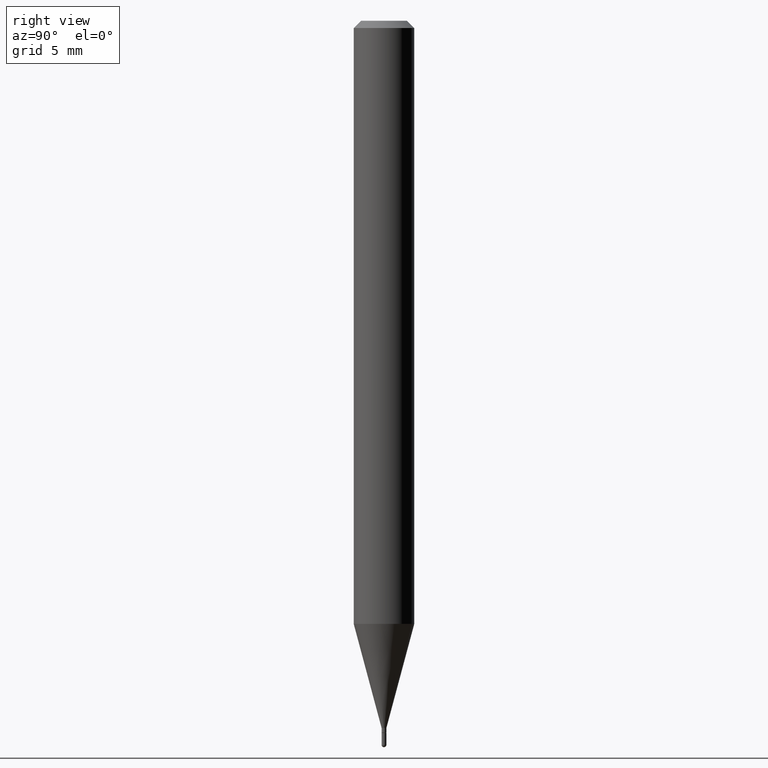
[diagram: clean part render]
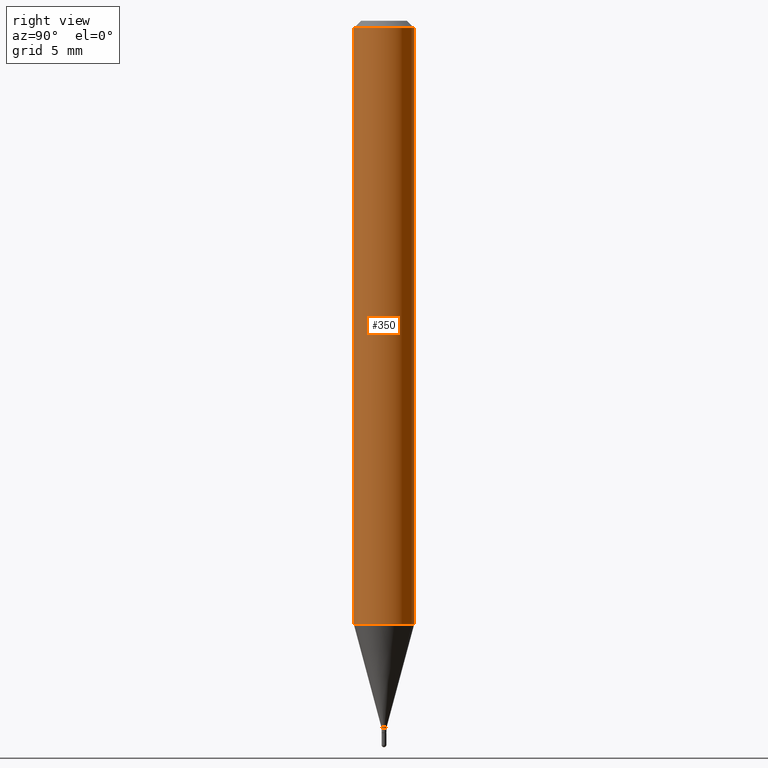
[diagram: same view with one face highlighted and labeled with its STEP entity id]
A machine part, right view. The second image highlights one B-rep face of the part: STEP entity #350.
In plain terms, the highlighted cylindrical surface (edge-blend (fillet) strip) has radius 1.5875 mm, axis along (-0, 0, 1).
Its self-contained STEP definition (entity closure, byte-faithful):
#17 = CARTESIAN_POINT ( 'NONE',  ( 4.440892098500625669E-16, 0.06250000000000000000, -2.180787545033681680E-16 ) ) ;
#24 = AXIS2_PLACEMENT_3D ( 'NONE', #378, #417, #59 ) ;
#59 = DIRECTION ( 'NONE',  ( -6.982962677686265922E-15, -1.000000000000000000, 4.370956789862821150E-15 ) ) ;
#63 = CIRCLE ( 'NONE', #395, 0.06250000000000000000 ) ;
#72 = DIRECTION ( 'NONE',  ( -2.447019908493791641E-29, 3.489260072053890687E-15, 1.000000000000000000 ) ) ;
#90 = DIRECTION ( 'NONE',  ( -2.447019908493791641E-29, 3.489260072053890687E-15, 1.000000000000000000 ) ) ;
#93 = VERTEX_POINT ( 'NONE', #446 ) ;
#98 = CARTESIAN_POINT ( 'NONE',  ( -4.364351673553611504E-16, -0.06250000000000434375, -1.245407078564790382 ) ) ;
#119 = ORIENTED_EDGE ( 'NONE', *, *, #488, .F. ) ;
#135 = EDGE_CURVE ( 'NONE', #510, #171, #249, .T. ) ;
#141 = CARTESIAN_POINT ( 'NONE',  ( -4.364351673553916201E-16, -0.06250000000000000000, 2.180787545033681680E-16 ) ) ;
#148 = CARTESIAN_POINT ( 'NONE',  ( 0.000000000000000000, 0.000000000000000000, 0.000000000000000000 ) ) ;
#171 = VERTEX_POINT ( 'NONE', #174 ) ;
#174 = CARTESIAN_POINT ( 'NONE',  ( 4.440892098500928887E-16, 0.06249999999999564237, -1.245407078564790826 ) ) ;
#188 = CYLINDRICAL_SURFACE ( 'NONE', #375, 0.06250000000000000000 ) ;
#206 = ORIENTED_EDGE ( 'NONE', *, *, #210, .T. ) ;
#207 = CARTESIAN_POINT ( 'NONE',  ( 3.670529862740689792E-31, -5.233890108080838965E-17, -0.01500000000000000812 ) ) ;
#210 = EDGE_CURVE ( 'NONE', #171, #391, #368, .T. ) ;
#227 = DIRECTION ( 'NONE',  ( -2.447019908493791361E-29, 3.489260072053890687E-15, 1.000000000000000000 ) ) ;
#235 = DIRECTION ( 'NONE',  ( -6.982962677686265922E-15, -1.000000000000000000, 3.489260072053890687E-15 ) ) ;
#248 = VECTOR ( 'NONE', #376, 39.37007874015748143 ) ;
#249 = CIRCLE ( 'NONE', #24, 0.06250000000000000000 ) ;
#259 = EDGE_CURVE ( 'NONE', #510, #93, #295, .T. ) ;
#295 = LINE ( 'NONE', #141, #296 ) ;
#296 = VECTOR ( 'NONE', #227, 39.37007874015748143 ) ;
#318 = DIRECTION ( 'NONE',  ( -6.982962677686265922E-15, -1.000000000000000000, 3.483106191921935554E-15 ) ) ;
#350 = ADVANCED_FACE ( 'NONE', ( #432 ), #188, .T. ) ;
#351 = CARTESIAN_POINT ( 'NONE',  ( 4.440892098500932831E-16, 0.06249999999999995143, -0.01500000000000022669 ) ) ;
#360 = EDGE_LOOP ( 'NONE', ( #445, #206, #119, #487 ) ) ;
#368 = LINE ( 'NONE', #17, #248 ) ;
#375 = AXIS2_PLACEMENT_3D ( 'NONE', #148, #72, #235 ) ;
#376 = DIRECTION ( 'NONE',  ( -2.447019908493791361E-29, 3.489260072053890687E-15, 1.000000000000000000 ) ) ;
#378 = CARTESIAN_POINT ( 'NONE',  ( 3.047535915427134078E-29, -4.345549192689407403E-15, -1.245407078564790604 ) ) ;
#391 = VERTEX_POINT ( 'NONE', #351 ) ;
#395 = AXIS2_PLACEMENT_3D ( 'NONE', #207, #90, #318 ) ;
#417 = DIRECTION ( 'NONE',  ( -2.447019908493791641E-29, 3.489260072053890687E-15, 1.000000000000000000 ) ) ;
#432 = FACE_OUTER_BOUND ( 'NONE', #360, .T. ) ;
#445 = ORIENTED_EDGE ( 'NONE', *, *, #135, .T. ) ;
#446 = CARTESIAN_POINT ( 'NONE',  ( -4.364351673553912750E-16, -0.06250000000000005551, -0.01499999999999979128 ) ) ;
#487 = ORIENTED_EDGE ( 'NONE', *, *, #259, .F. ) ;
#488 = EDGE_CURVE ( 'NONE', #93, #391, #63, .T. ) ;
#510 = VERTEX_POINT ( 'NONE', #98 ) ;